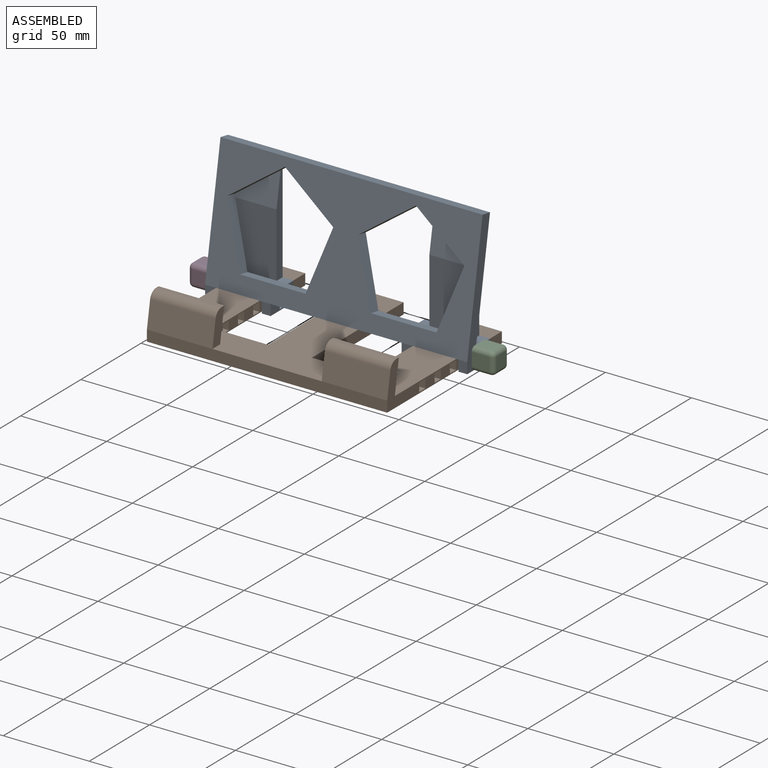
[diagram: assembled view]
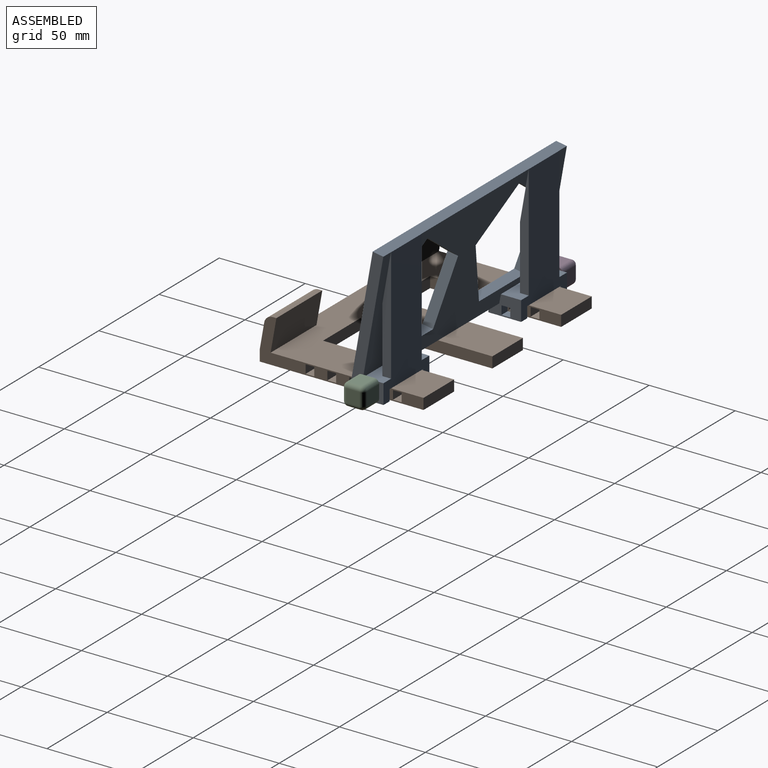
[diagram: assembled view, second angle]
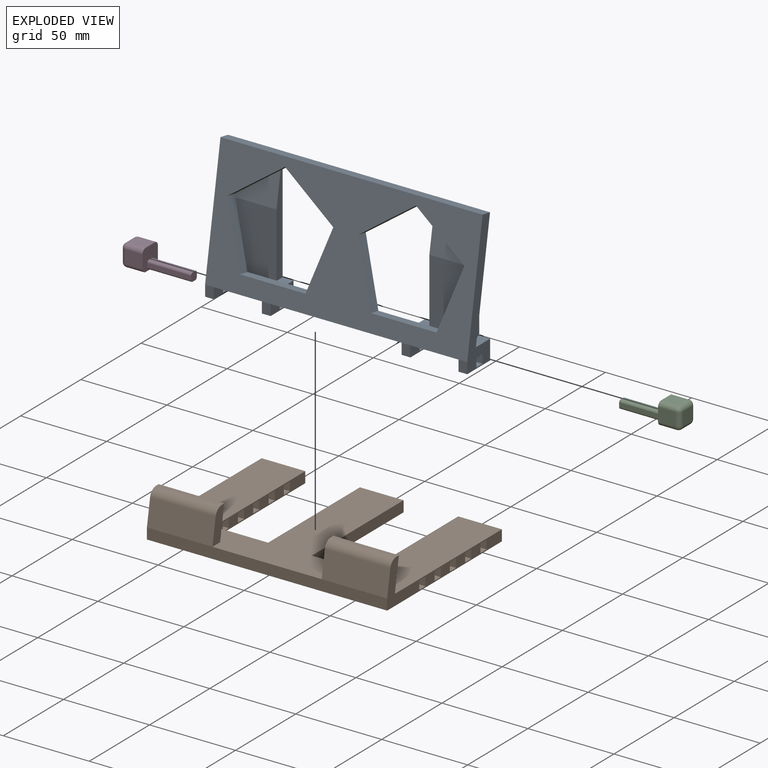
[diagram: exploded view]
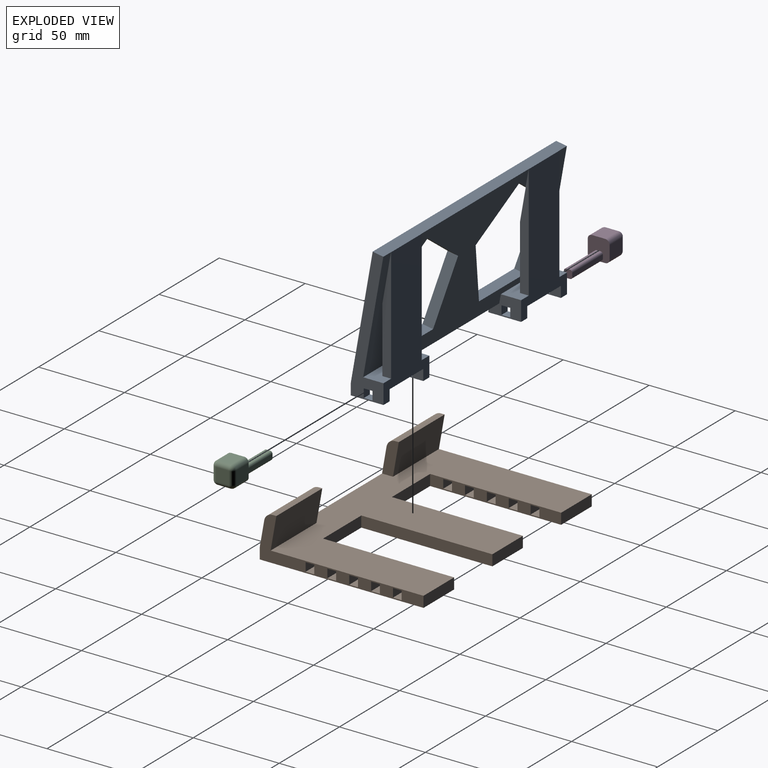
[diagram: exploded view, second angle]
ASSEMBLY  parts=4 mates=3
PART A: 60 faces, bbox 152.4x19.1x79 mm
  f0: plane 152.4x72.62mm, normal (0,-0.98,0.17), area 6242.5mm2, adj f1,f8,f10,f13,f14,f25,f28,f31
  f1: plane 78.97x19.05mm, normal (1,0,0), area 615.1mm2, adj f0,f2,f10,f11,f12,f15,f16,f17
  f2: plane 152.4x71.53mm, normal (0,0.98,-0.17), area 4714.9mm2, adj f1,f3,f4,f5,f14,f23,f24,f25
  f3: plane 38.14x25.4mm, normal (0,-1,0), area 955.3mm2, adj f2,f4,f23,f54,f56,f57
  f4: plane 66.45x5.08mm, normal (-1,0,0), area 265mm2, adj f2,f3,f12,f55,f56,f57,f59
  f5: plane 19.05x11.43mm, normal (-1,0,0), area 157.4mm2, adj f2,f8,f9,f12,f14,f19,f20,f21
  f6: plane 19.05x6.35mm, normal (1,0,0), area 95.2mm2, adj f8,f9,f12,f13,f19,f20,f21,f22
  f7: plane 19.05x6.35mm, normal (-1,0,0), area 95.2mm2, adj f10,f11,f12,f13,f15,f16,f17,f18
  f8: plane 6.35x5.08mm, normal (0,-1,0), area 32.3mm2, adj f0,f5,f6,f9
  f9: plane 19.05x5.08mm, normal (0,0,-1), area 96.8mm2, adj f5,f6,f8,f12
  f10: plane 6.35x5.08mm, normal (0,-1,0), area 32.3mm2, adj f0,f1,f7,f11
  f11: plane 19.05x5.08mm, normal (0,0,-1), area 96.8mm2, adj f1,f7,f10,f12
  f12: plane 77.87x38.1mm, normal (0,1,0), area 1945.5mm2, adj f1,f4,f5,f6,f7,f9,f11,f13
  f13: plane 27.94x19.05mm, normal (0,0,-1), area 532.3mm2, adj f0,f6,f7,f12
  f14: plane 76.2x6.35mm, normal (0,0,-1), area 483.9mm2, adj f0,f2,f5,f24
  f15: plane 5.08x5.08mm, normal (0,1,0), area 25.8mm2, adj f1,f7,f16,f18
  f16: plane 5.08x5.08mm, normal (0,0,-1), area 25.8mm2, adj f1,f7,f15,f17
  f17: plane 5.08x5.08mm, normal (0,-1,0), area 25.8mm2, adj f1,f7,f16,f18
  f18: plane 5.08x5.08mm, normal (0,0,1), area 25.8mm2, adj f1,f7,f15,f17
  f19: plane 5.08x5.08mm, normal (0,0,1), area 25.8mm2, adj f5,f6,f20,f22
  f20: plane 5.08x5.08mm, normal (0,-1,0), area 25.8mm2, adj f5,f6,f19,f21
  f21: plane 5.08x5.08mm, normal (0,0,-1), area 25.8mm2, adj f5,f6,f20,f22
  f22: plane 5.08x5.08mm, normal (0,1,0), area 25.8mm2, adj f5,f6,f19,f21
  f23: plane 66.45x5.08mm, normal (1,0,0), area 266.9mm2, adj f2,f3,f12,f57,f59
  f24: plane 19.05x11.43mm, normal (1,0,0), area 157.4mm2, adj f2,f14,f28,f29,f30,f38,f39,f40
  f25: plane 78.97x19.05mm, normal (-1,0,0), area 615.1mm2, adj f0,f2,f30,f31,f32,f34,f35,f36
  f26: plane 19.05x6.35mm, normal (-1,0,0), area 95.2mm2, adj f28,f29,f30,f33,f38,f39,f40,f41
  f27: plane 19.05x6.35mm, normal (1,0,0), area 95.2mm2, adj f30,f31,f32,f33,f34,f35,f36,f37
  f28: plane 6.35x5.08mm, normal (0,-1,0), area 32.3mm2, adj f0,f24,f26,f29
  f29: plane 19.05x5.08mm, normal (0,0,-1), area 96.8mm2, adj f24,f26,f28,f30
  f30: plane 77.87x38.1mm, normal (0,1,0), area 1945.5mm2, adj f24,f25,f26,f27,f29,f32,f33,f43
  f31: plane 6.35x5.08mm, normal (0,-1,0), area 32.3mm2, adj f0,f25,f27,f32
  f32: plane 19.05x5.08mm, normal (0,0,-1), area 96.8mm2, adj f25,f27,f30,f31
  f33: plane 27.94x19.05mm, normal (0,0,-1), area 532.3mm2, adj f0,f26,f27,f30
  f34: plane 5.08x5.08mm, normal (0,1,0), area 25.8mm2, adj f25,f27,f35,f37
  f35: plane 5.08x5.08mm, normal (0,0,-1), area 25.8mm2, adj f25,f27,f34,f36
  f36: plane 5.08x5.08mm, normal (0,-1,0), area 25.8mm2, adj f25,f27,f35,f37
  f37: plane 5.08x5.08mm, normal (0,0,1), area 25.8mm2, adj f25,f27,f34,f36
  f38: plane 5.08x5.08mm, normal (0,0,1), area 25.8mm2, adj f24,f26,f39,f41
  f39: plane 5.08x5.08mm, normal (0,-1,0), area 25.8mm2, adj f24,f26,f38,f40
  f40: plane 5.08x5.08mm, normal (0,0,-1), area 25.8mm2, adj f24,f26,f39,f41
  f41: plane 5.08x5.08mm, normal (0,1,0), area 25.8mm2, adj f24,f26,f38,f40
  f42: plane 38.14x25.4mm, normal (0,-1,0), area 955.3mm2, adj f2,f43,f44,f48,f50,f58
  f43: plane 66.45x5.08mm, normal (-1,0,0), area 266.9mm2, adj f2,f30,f42,f58,f59
  f44: plane 66.45x5.08mm, normal (1,0,0), area 265mm2, adj f2,f30,f42,f49,f50,f58,f59
  f45: plane 38.1x6.16mm, normal (0,0.17,0.98), area 238.3mm2, adj f0,f2,f46,f48
  f46: plane 36.77x12.45mm, normal (-0.95,0.05,0.3), area 238.3mm2, adj f0,f2,f45,f47
  f47: plane 30.82x23.14mm, normal (-0.59,-0.14,-0.8), area 238.3mm2, adj f0,f2,f46,f49
  f48: plane 36.77x12.55mm, normal (0.95,0.05,0.3), area 238.4mm2, adj f0,f2,f42,f45,f49,f50
  f49: plane 30.82x23.16mm, normal (0.59,-0.14,-0.8), area 241.2mm2, adj f0,f2,f44,f47,f48,f50
  f50: plane 24.47x19.24mm, normal (0,-0.98,0.17), area 260.2mm2, adj f42,f44,f48,f49
  f51: plane 30.82x23.14mm, normal (0.59,-0.14,-0.8), area 238.3mm2, adj f0,f2,f52,f55
  f52: plane 36.77x12.45mm, normal (0.95,0.05,0.3), area 238.3mm2, adj f0,f2,f51,f53
  f53: plane 38.1x6.16mm, normal (0,0.17,0.98), area 238.3mm2, adj f0,f2,f52,f54
  f54: plane 36.77x12.55mm, normal (-0.95,0.05,0.3), area 238.4mm2, adj f0,f2,f3,f53,f55,f56
  f55: plane 30.82x23.16mm, normal (-0.59,-0.14,-0.8), area 241.2mm2, adj f0,f2,f4,f51,f54,f56
  f56: plane 24.47x19.24mm, normal (0,-0.98,0.17), area 260.2mm2, adj f3,f4,f54,f55
  f57: plane 38.1x11.8mm, normal (0,0,1), area 320.7mm2, adj f1,f2,f3,f4,f5,f12,f23
  f58: plane 38.1x11.8mm, normal (0,0,1), area 320.7mm2, adj f2,f24,f25,f30,f42,f43,f44
  f59: plane 152.4x6.25mm, normal (0,0.17,0.98), area 957.5mm2, adj f0,f1,f2,f4,f12,f23,f25,f30
PART B: 64 faces, bbox 139.7x95.3x25.4 mm
  f0: plane 139.7x95.25mm, normal (0,0,1), area 7983.9mm2, adj f1,f2,f3,f4,f5,f7,f31,f32
  f1: plane 95.25x25.4mm, normal (1,0,0), area 593.1mm2, adj f0,f3,f4,f6,f7,f8,f9,f10
  f2: plane 76.2x6.35mm, normal (-1,0,0), area 354.8mm2, adj f0,f4,f5,f6,f10,f11,f12,f13
  f3: plane 139.7x6.35mm, normal (0,-1,0), area 887.1mm2, adj f0,f1,f6,f9,f34,f40
  f4: plane 25.4x6.35mm, normal (0,1,0), area 161.3mm2, adj f0,f1,f2,f6
  f5: plane 31.75x6.35mm, normal (0,1,0), area 201.6mm2, adj f0,f2,f6,f31
  f6: plane 139.7x95.25mm, normal (0,0,-1), area 8467.7mm2, adj f1,f2,f3,f4,f5,f31,f32,f34
  f7: plane 38.1x19.05mm, normal (0,0.98,-0.17), area 737mm2, adj f0,f1,f8,f33
  f8: plane 38.1x2.09mm, normal (0,0,1), area 79.5mm2, adj f1,f7,f30,f33
  f9: plane 38.1x14.85mm, normal (0,-0.98,0.17), area 574.6mm2, adj f1,f3,f30,f33
  f10: plane 25.4x5.08mm, normal (0,0,-1), area 129mm2, adj f1,f2,f11,f13
  f11: plane 25.4x5.08mm, normal (0,1,0), area 129mm2, adj f1,f2,f10,f12
  f12: plane 25.4x5.08mm, normal (0,0,1), area 129mm2, adj f1,f2,f11,f13
  f13: plane 25.4x5.08mm, normal (0,-1,0), area 129mm2, adj f1,f2,f10,f12
  f14: plane 25.4x5.08mm, normal (0,0,-1), area 129mm2, adj f1,f2,f15,f17
  f15: plane 25.4x5.08mm, normal (0,1,0), area 129mm2, adj f1,f2,f14,f16
  f16: plane 25.4x5.08mm, normal (0,0,1), area 129mm2, adj f1,f2,f15,f17
  f17: plane 25.4x5.08mm, normal (0,-1,0), area 129mm2, adj f1,f2,f14,f16
  f18: plane 25.4x5.08mm, normal (0,0,-1), area 129mm2, adj f1,f2,f19,f21
  f19: plane 25.4x5.08mm, normal (0,1,0), area 129mm2, adj f1,f2,f18,f20
  f20: plane 25.4x5.08mm, normal (0,0,1), area 129mm2, adj f1,f2,f19,f21
  f21: plane 25.4x5.08mm, normal (0,-1,0), area 129mm2, adj f1,f2,f18,f20
  f22: plane 25.4x5.08mm, normal (0,0,-1), area 129mm2, adj f1,f2,f23,f25
  f23: plane 25.4x5.08mm, normal (0,1,0), area 129mm2, adj f1,f2,f22,f24
  f24: plane 25.4x5.08mm, normal (0,0,1), area 129mm2, adj f1,f2,f23,f25
  f25: plane 25.4x5.08mm, normal (0,-1,0), area 129mm2, adj f1,f2,f22,f24
  f26: plane 25.4x5.08mm, normal (0,0,-1), area 129mm2, adj f1,f2,f27,f29
  f27: plane 25.4x5.08mm, normal (0,1,0), area 129mm2, adj f1,f2,f26,f28
  f28: plane 25.4x5.08mm, normal (0,0,1), area 129mm2, adj f1,f2,f27,f29
  f29: plane 25.4x5.08mm, normal (0,-1,0), area 129mm2, adj f1,f2,f26,f28
  f30: cylinder r=5.08mm len=38.1mm, axis (1,0,0), area 270.2mm2, adj f1,f8,f9,f33
  f31: plane 76.2x6.35mm, normal (1,0,0), area 483.9mm2, adj f0,f5,f6,f32
  f32: plane 25.4x6.35mm, normal (0,1,0), area 161.3mm2, adj f0,f6,f31,f62
  f33: plane 19.05x9.71mm, normal (-1,0,0), area 117.3mm2, adj f0,f7,f8,f9,f30
  f34: plane 95.25x25.4mm, normal (-1,0,0), area 593.1mm2, adj f0,f3,f6,f36,f38,f39,f40,f41
  f35: plane 76.2x6.35mm, normal (1,0,0), area 354.8mm2, adj f0,f6,f36,f37,f41,f42,f43,f44
  f36: plane 25.4x6.35mm, normal (0,1,0), area 161.3mm2, adj f0,f6,f34,f35
  f37: plane 31.75x6.35mm, normal (0,1,0), area 201.6mm2, adj f0,f6,f35,f62
  f38: plane 38.1x19.05mm, normal (0,0.98,-0.17), area 737mm2, adj f0,f34,f39,f63
  f39: plane 38.1x2.09mm, normal (0,0,1), area 79.5mm2, adj f34,f38,f61,f63
  f40: plane 38.1x14.85mm, normal (0,-0.98,0.17), area 574.6mm2, adj f3,f34,f61,f63
  f41: plane 25.4x5.08mm, normal (0,0,-1), area 129mm2, adj f34,f35,f42,f44
  f42: plane 25.4x5.08mm, normal (0,1,0), area 129mm2, adj f34,f35,f41,f43
  f43: plane 25.4x5.08mm, normal (0,0,1), area 129mm2, adj f34,f35,f42,f44
  f44: plane 25.4x5.08mm, normal (0,-1,0), area 129mm2, adj f34,f35,f41,f43
  f45: plane 25.4x5.08mm, normal (0,0,-1), area 129mm2, adj f34,f35,f46,f48
  f46: plane 25.4x5.08mm, normal (0,1,0), area 129mm2, adj f34,f35,f45,f47
  f47: plane 25.4x5.08mm, normal (0,0,1), area 129mm2, adj f34,f35,f46,f48
  f48: plane 25.4x5.08mm, normal (0,-1,0), area 129mm2, adj f34,f35,f45,f47
  f49: plane 25.4x5.08mm, normal (0,0,-1), area 129mm2, adj f34,f35,f50,f52
  f50: plane 25.4x5.08mm, normal (0,1,0), area 129mm2, adj f34,f35,f49,f51
  f51: plane 25.4x5.08mm, normal (0,0,1), area 129mm2, adj f34,f35,f50,f52
  f52: plane 25.4x5.08mm, normal (0,-1,0), area 129mm2, adj f34,f35,f49,f51
  f53: plane 25.4x5.08mm, normal (0,0,-1), area 129mm2, adj f34,f35,f54,f56
  f54: plane 25.4x5.08mm, normal (0,1,0), area 129mm2, adj f34,f35,f53,f55
  f55: plane 25.4x5.08mm, normal (0,0,1), area 129mm2, adj f34,f35,f54,f56
  f56: plane 25.4x5.08mm, normal (0,-1,0), area 129mm2, adj f34,f35,f53,f55
  f57: plane 25.4x5.08mm, normal (0,0,-1), area 129mm2, adj f34,f35,f58,f60
  f58: plane 25.4x5.08mm, normal (0,1,0), area 129mm2, adj f34,f35,f57,f59
  f59: plane 25.4x5.08mm, normal (0,0,1), area 129mm2, adj f34,f35,f58,f60
  f60: plane 25.4x5.08mm, normal (0,-1,0), area 129mm2, adj f34,f35,f57,f59
  f61: cylinder r=5.08mm len=38.1mm, axis (-1,0,0), area 270.2mm2, adj f34,f39,f40,f63
  f62: plane 76.2x6.35mm, normal (-1,0,0), area 483.9mm2, adj f0,f6,f32,f37
  f63: plane 19.05x9.71mm, normal (1,0,0), area 117.3mm2, adj f0,f38,f39,f40,f61
PART C: 27 faces, bbox 38.1x12.7x12.7 mm
  f0: plane 25.4x2.29mm, normal (0,0,1), area 58.1mm2, adj f4,f10,f11,f14
  f1: plane 25.4x2.29mm, normal (0,-1,0), area 58.1mm2, adj f4,f10,f11,f12
  f2: plane 25.4x2.29mm, normal (0,0,-1), area 58.1mm2, adj f4,f10,f12,f13
  f3: plane 25.4x2.29mm, normal (0,1,0), area 58.1mm2, adj f4,f10,f13,f14
  f4: plane 4.83x4.83mm, normal (-1,0,0), area 21.9mm2, adj f0,f1,f2,f3,f11,f12,f13,f14
  f5: plane 10.16x7.62mm, normal (0,0,1), area 77.4mm2, adj f10,f17,f23,f26
  f6: plane 10.16x7.62mm, normal (0,-1,0), area 77.4mm2, adj f10,f20,f24,f26
  f7: plane 10.16x7.62mm, normal (0,0,-1), area 77.4mm2, adj f10,f15,f19,f20
  f8: plane 10.16x7.62mm, normal (0,1,0), area 77.4mm2, adj f10,f15,f17,f18
  f9: plane 7.62x7.62mm, normal (1,0,0), area 58.1mm2, adj f18,f19,f23,f24
  f10: plane 12.7x12.7mm, normal (-1,0,0), area 133.8mm2, adj f0,f1,f2,f3,f5,f6,f7,f8
  f11: cylinder r=1.27mm len=25.4mm, axis (1,0,0), area 50.7mm2, adj f0,f1,f4,f10
  f12: cylinder r=1.27mm len=25.4mm, axis (-1,0,0), area 50.7mm2, adj f1,f2,f4,f10
  f13: cylinder r=1.27mm len=25.4mm, axis (1,0,0), area 50.7mm2, adj f2,f3,f4,f10
  f14: cylinder r=1.27mm len=25.4mm, axis (-1,0,0), area 50.7mm2, adj f0,f3,f4,f10
  f15: cylinder r=2.54mm len=10.16mm, axis (1,0,0), area 40.5mm2, adj f7,f8,f10,f16
  f16: sphere r=2.54mm, area 10.1mm2, adj f15,f18,f19
  f17: cylinder r=2.54mm len=10.16mm, axis (-1,0,0), area 40.5mm2, adj f5,f8,f10,f21
  f18: cylinder r=2.54mm len=7.62mm, axis (0,0,-1), area 30.4mm2, adj f8,f9,f16,f21
  f19: cylinder r=2.54mm len=7.62mm, axis (0,-1,0), area 30.4mm2, adj f7,f9,f16,f22
  f20: cylinder r=2.54mm len=10.16mm, axis (-1,0,0), area 40.5mm2, adj f6,f7,f10,f22
  f21: sphere r=2.54mm, area 10.1mm2, adj f17,f18,f23
  f22: sphere r=2.54mm, area 10.1mm2, adj f19,f20,f24
  f23: cylinder r=2.54mm len=7.62mm, axis (0,1,0), area 30.4mm2, adj f5,f9,f21,f25
  f24: cylinder r=2.54mm len=7.62mm, axis (0,0,1), area 30.4mm2, adj f6,f9,f22,f25
  f25: sphere r=2.54mm, area 10.1mm2, adj f23,f24,f26
  f26: cylinder r=2.54mm len=10.16mm, axis (1,0,0), area 40.5mm2, adj f5,f6,f10,f25
PART D: same geometry as C
PLACE A t=(3.05,61.51,14.73)mm
PLACE B t=(3.05,-2.81,-0.05)mm fixed
PLACE C t=(66.55,32.2,3.12)mm
PLACE D rot(axis=(0,0,1),180deg) t=(-60.45,32.2,3.12)mm
MATE slider C.f4 <-> A.f1  axis (-1,0,0) through (53.85,32.2,3.12)mm
MATE slider D.f4 <-> A.f25  axis (1,0,0) through (-47.75,32.2,3.12)mm
MATE planar B.f0 <-> A.f13  axis (0,0,1) through (60.2,-16.27,6.3)mm
